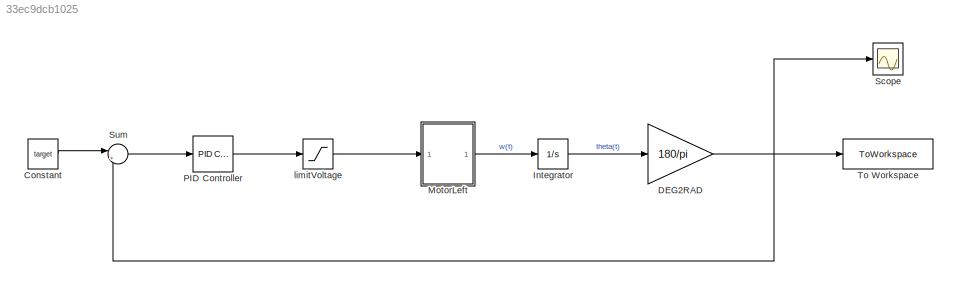
MODEL slx_33ec9dcb1025
KIND model
CONFIG AbsTol = auto
CONFIG EnableMultiTasking = off
CONFIG FixedStep = auto
CONFIG MaxStep = auto
CONFIG MinStep = auto
CONFIG RelTol = 1e-3
CONFIG SampleTimeConstraint = Unconstrained
CONFIG SolverName = VariableStepAuto
CONFIG StartTime = 0.0
CONFIG StopTime = 8
BLOCK [Constant] Constant
  Value = target
BLOCK [Gain] DEG2RAD
  Gain = 180/pi
BLOCK [Integrator] Integrator
  Ports = [1, 1]
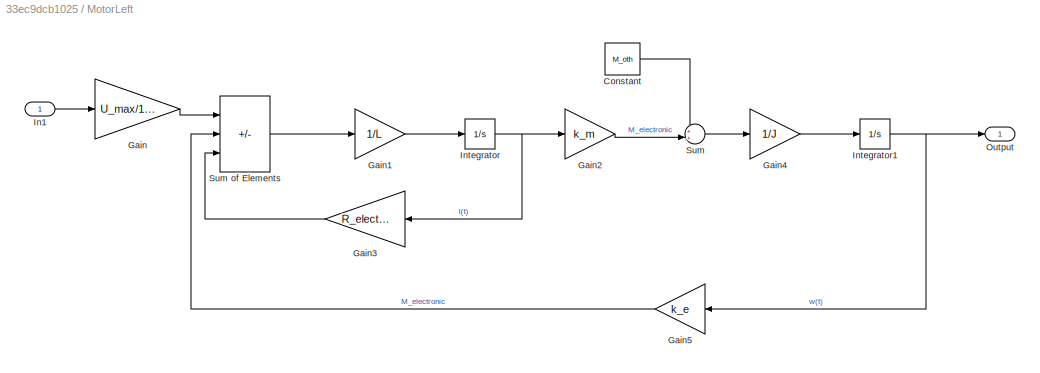
BLOCK [SubSystem] MotorLeft
  Ports = [1, 1]
  RequestExecContextInheritance = off
BLOCK [Constant] MotorLeft/Constant
  Value = M_oth
BLOCK [Gain] MotorLeft/Gain
  Gain = U_max/100
BLOCK [Gain] MotorLeft/Gain1
  Gain = 1/L
BLOCK [Gain] MotorLeft/Gain2
  Gain = k_m
BLOCK [Gain] MotorLeft/Gain3
  Gain = R_electronic
BLOCK [Gain] MotorLeft/Gain4
  Gain = 1/J
BLOCK [Gain] MotorLeft/Gain5
  Gain = k_e
BLOCK [Inport] MotorLeft/In1
BLOCK [Integrator] MotorLeft/Integrator
  Ports = [1, 1]
BLOCK [Integrator] MotorLeft/Integrator1
  Ports = [1, 1]
BLOCK [Outport] MotorLeft/Output
BLOCK [Sum] MotorLeft/Sum
  Inputs = ++|
  Ports = [2, 1]
BLOCK [Sum] MotorLeft/Sum of Elements
  IconShape = rectangular
  Inputs = +--
  Ports = [3, 1]
BLOCK [Reference] PID Controller  REF=pid_lib/PID Controller
  Ports = [1, 1]
  SourceBlock = pid_lib/PID Controller
  SourceProductBaseCode = SL
  SourceType = PID 1dof
BLOCK [Scope] Scope
  Floating = off
  NumInputPorts = 1
  Ports = [1]
  ScopeSpecificationString = Simulink.scopes.TimeScopeBlockCfg('CurrentConfiguration', extmgr.ConfigurationSet(extmgr.Configuration('Core','General UI',true),extmgr.Configuration('Core','Source UI',true),extmgr.Configuration('Sources','WiredSimulink',true),extmgr.Configuration('Visuals','Time Domain',true,'SerializedDisplays',{struct('MinYLimReal','-48.76106','MaxYLimReal','438.84956','YLabelReal','','MinYLimMag','0.00000','M...<+1386ch>
BLOCK [Sum] Sum
  Inputs = |+-
  Ports = [2, 1]
BLOCK [ToWorkspace] To Workspace
  FixptAsFi = on
  MaxDataPoints = inf
  Ports = [1]
  SampleTime = -1
  SaveFormat = Timeseries
  VariableName = angle
BLOCK [Saturate] limitVoltage
  LowerLimit = -100
  UpperLimit = 100
LINE Constant:1 -> Sum:1
NET DEG2RAD:1 -> Scope:1, Sum:2, To Workspace:1
LINE Integrator:1 -> DEG2RAD:1
LINE MotorLeft/Constant:1 -> MotorLeft/Sum:1
LINE MotorLeft/Gain1:1 -> MotorLeft/Integrator:1
LINE MotorLeft/Gain2:1 -> MotorLeft/Sum:2
LINE MotorLeft/Gain3:1 -> MotorLeft/Sum of Elements:3
LINE MotorLeft/Gain4:1 -> MotorLeft/Integrator1:1
LINE MotorLeft/Gain5:1 -> MotorLeft/Sum of Elements:2
LINE MotorLeft/Gain:1 -> MotorLeft/Sum of Elements:1
LINE MotorLeft/In1:1 -> MotorLeft/Gain:1
NET MotorLeft/Integrator1:1 -> MotorLeft/Gain5:1, MotorLeft/Output:1
NET MotorLeft/Integrator:1 -> MotorLeft/Gain2:1, MotorLeft/Gain3:1
LINE MotorLeft/Sum of Elements:1 -> MotorLeft/Gain1:1
LINE MotorLeft/Sum:1 -> MotorLeft/Gain4:1
LINE MotorLeft:1 -> Integrator:1
LINE PID Controller:1 -> limitVoltage:1
LINE Sum:1 -> PID Controller:1
LINE limitVoltage:1 -> MotorLeft:1
note: NET lines group one-source signal fan-out (src -> all destinations, sorted); 1:1 wires keep LINE
